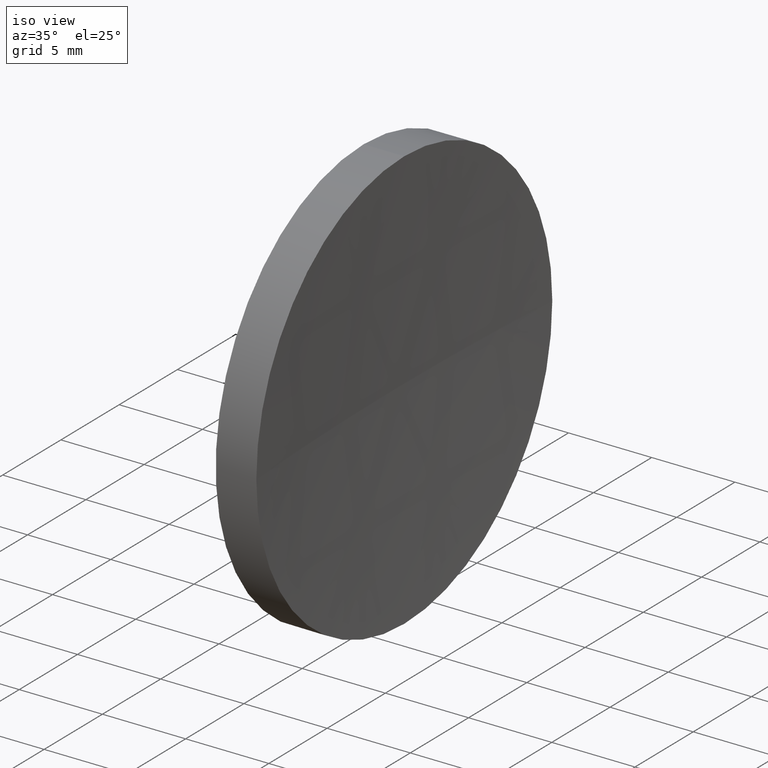
[diagram: clean part render]
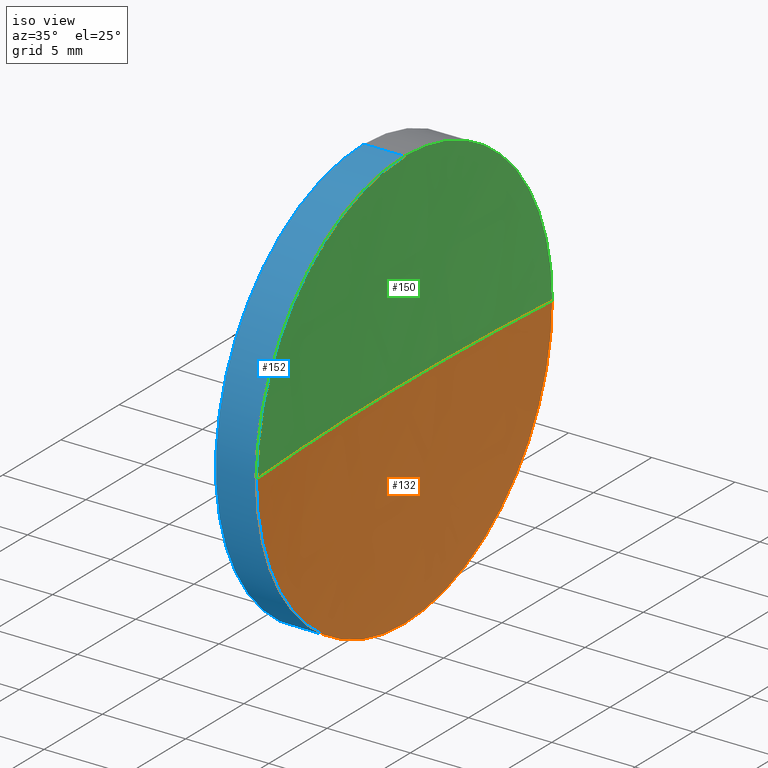
[diagram: same view with three faces highlighted in distinct colors, each labeled with its STEP entity id]
A machine part, iso view with three faces highlighted in distinct colors.
Their STEP definitions:

[orange] entity #132 — the highlighted spherical surface has radius 183.39 mm.
#7 = SPHERICAL_SURFACE ( 'NONE', #47, 183.3899999999999900 ) ;
#10 = CARTESIAN_POINT ( 'NONE',  ( 304.7529307920347000, 71.19398908659368900, 0.0000000000000000000 ) ) ;
#17 = EDGE_CURVE ( 'NONE', #138, #64, #107, .T. ) ;
#19 = ORIENTED_EDGE ( 'NONE', *, *, #32, .F. ) ;
#26 = EDGE_CURVE ( 'NONE', #153, #138, #168, .T. ) ;
#32 = EDGE_CURVE ( 'NONE', #64, #120, #124, .T. ) ;
#34 = CARTESIAN_POINT ( 'NONE',  ( 121.8032051841508400, 71.19398908659370300, 0.0000000000000000000 ) ) ;
#35 = ORIENTED_EDGE ( 'NONE', *, *, #26, .F. ) ;
#36 = CARTESIAN_POINT ( 'NONE',  ( 304.7529307920347000, 71.19398908659368900, 0.0000000000000000000 ) ) ;
#43 = CIRCLE ( 'NONE', #100, 183.3899999999999900 ) ;
#47 = AXIS2_PLACEMENT_3D ( 'NONE', #130, #56, #94 ) ;
#50 = DIRECTION ( 'NONE',  ( 0.0000000000000000000, 0.0000000000000000000, 1.000000000000000000 ) ) ;
#51 = DIRECTION ( 'NONE',  ( -1.000000000000000000, -0.0000000000000000000, -0.0000000000000000000 ) ) ;
#53 = DIRECTION ( 'NONE',  ( 1.000000000000000000, 0.0000000000000000000, 0.0000000000000000000 ) ) ;
#55 = AXIS2_PLACEMENT_3D ( 'NONE', #10, #155, #185 ) ;
#56 = DIRECTION ( 'NONE',  ( 0.0000000000000000000, 0.0000000000000000000, -1.000000000000000000 ) ) ;
#59 = EDGE_LOOP ( 'NONE', ( #19, #186, #35, #84 ) ) ;
#60 = CARTESIAN_POINT ( 'NONE',  ( 121.8032051841508300, 83.89398908659370600, 0.0000000000000000000 ) ) ;
#64 = VERTEX_POINT ( 'NONE', #111 ) ;
#68 = DIRECTION ( 'NONE',  ( -1.000000000000000000, -0.0000000000000000000, -0.0000000000000000000 ) ) ;
#73 = DIRECTION ( 'NONE',  ( 0.0000000000000000000, 0.0000000000000000000, 1.000000000000000000 ) ) ;
#74 = CARTESIAN_POINT ( 'NONE',  ( 121.3629307920346900, 71.19398908659370300, 0.0000000000000000000 ) ) ;
#76 = EDGE_CURVE ( 'NONE', #153, #120, #43, .T. ) ;
#84 = ORIENTED_EDGE ( 'NONE', *, *, #76, .T. ) ;
#94 = DIRECTION ( 'NONE',  ( 0.0000000000000000000, 1.000000000000000000, 0.0000000000000000000 ) ) ;
#98 = FACE_OUTER_BOUND ( 'NONE', #59, .T. ) ;
#100 = AXIS2_PLACEMENT_3D ( 'NONE', #36, #73, #53 ) ;
#107 = CIRCLE ( 'NONE', #144, 12.69999999999996200 ) ;
#111 = CARTESIAN_POINT ( 'NONE',  ( 121.8032051841508300, 58.49398908659368600, -1.555301434917138600E-015 ) ) ;
#120 = VERTEX_POINT ( 'NONE', #74 ) ;
#124 = CIRCLE ( 'NONE', #55, 183.3899999999999900 ) ;
#127 = DIRECTION ( 'NONE',  ( 0.0000000000000000000, 0.0000000000000000000, 1.000000000000000000 ) ) ;
#130 = CARTESIAN_POINT ( 'NONE',  ( 304.7529307920347000, 71.19398908659368900, 0.0000000000000000000 ) ) ;
#132 = ADVANCED_FACE ( 'NONE', ( #98 ), #7, .F. ) ;
#138 = VERTEX_POINT ( 'NONE', #143 ) ;
#143 = CARTESIAN_POINT ( 'NONE',  ( 121.8032051841508400, 71.19398908659370300, -12.69999999999996200 ) ) ;
#144 = AXIS2_PLACEMENT_3D ( 'NONE', #34, #68, #127 ) ;
#153 = VERTEX_POINT ( 'NONE', #60 ) ;
#155 = DIRECTION ( 'NONE',  ( 0.0000000000000000000, 1.224646799147353200E-016, -1.000000000000000000 ) ) ;
#162 = AXIS2_PLACEMENT_3D ( 'NONE', #174, #51, #50 ) ;
#168 = CIRCLE ( 'NONE', #162, 12.69999999999996200 ) ;
#174 = CARTESIAN_POINT ( 'NONE',  ( 121.8032051841508400, 71.19398908659370300, 0.0000000000000000000 ) ) ;
#185 = DIRECTION ( 'NONE',  ( 0.0000000000000000000, 1.000000000000000000, 1.224646799147353200E-016 ) ) ;
#186 = ORIENTED_EDGE ( 'NONE', *, *, #17, .F. ) ;

[blue] entity #152 — the highlighted cylindrical surface (partial cylindrical patch) has radius 12.7 mm, axis along (-1, -0, -0).
#2 = CARTESIAN_POINT ( 'NONE',  ( 111.9552297575605700, 71.19398908659370300, 12.69999999999998200 ) ) ;
#8 = EDGE_CURVE ( 'NONE', #81, #180, #142, .T. ) ;
#11 = CARTESIAN_POINT ( 'NONE',  ( 111.9552297575605700, 71.19398908659370300, 0.0000000000000000000 ) ) ;
#15 = DIRECTION ( 'NONE',  ( -1.000000000000000000, -0.0000000000000000000, -0.0000000000000000000 ) ) ;
#17 = EDGE_CURVE ( 'NONE', #138, #64, #107, .T. ) ;
#21 = VERTEX_POINT ( 'NONE', #85 ) ;
#22 = CARTESIAN_POINT ( 'NONE',  ( 119.3629307920347200, 71.19398908659370300, -12.70000000000000100 ) ) ;
#29 = CARTESIAN_POINT ( 'NONE',  ( 121.8032051841508400, 71.19398908659370300, 0.0000000000000000000 ) ) ;
#34 = CARTESIAN_POINT ( 'NONE',  ( 121.8032051841508400, 71.19398908659370300, 0.0000000000000000000 ) ) ;
#40 = CARTESIAN_POINT ( 'NONE',  ( 119.3629307920347200, 71.19398908659370300, 12.70000000000000300 ) ) ;
#41 = DIRECTION ( 'NONE',  ( 0.0000000000000000000, 0.0000000000000000000, 1.000000000000000000 ) ) ;
#57 = ORIENTED_EDGE ( 'NONE', *, *, #116, .T. ) ;
#58 = CARTESIAN_POINT ( 'NONE',  ( 111.9552297575605700, 71.19398908659370300, -12.69999999999998200 ) ) ;
#63 = ORIENTED_EDGE ( 'NONE', *, *, #17, .T. ) ;
#64 = VERTEX_POINT ( 'NONE', #111 ) ;
#68 = DIRECTION ( 'NONE',  ( -1.000000000000000000, -0.0000000000000000000, -0.0000000000000000000 ) ) ;
#78 = FACE_OUTER_BOUND ( 'NONE', #134, .T. ) ;
#81 = VERTEX_POINT ( 'NONE', #22 ) ;
#82 = AXIS2_PLACEMENT_3D ( 'NONE', #29, #131, #104 ) ;
#85 = CARTESIAN_POINT ( 'NONE',  ( 121.8032051841508400, 71.19398908659370300, 12.69999999999996200 ) ) ;
#86 = CIRCLE ( 'NONE', #82, 12.69999999999996200 ) ;
#91 = VECTOR ( 'NONE', #141, 1000.000000000000000 ) ;
#96 = AXIS2_PLACEMENT_3D ( 'NONE', #11, #15, #41 ) ;
#99 = ORIENTED_EDGE ( 'NONE', *, *, #8, .F. ) ;
#104 = DIRECTION ( 'NONE',  ( 0.0000000000000000000, 0.0000000000000000000, 1.000000000000000000 ) ) ;
#107 = CIRCLE ( 'NONE', #144, 12.69999999999996200 ) ;
#110 = ORIENTED_EDGE ( 'NONE', *, *, #136, .F. ) ;
#111 = CARTESIAN_POINT ( 'NONE',  ( 121.8032051841508300, 58.49398908659368600, -1.555301434917138600E-015 ) ) ;
#116 = EDGE_CURVE ( 'NONE', #64, #21, #86, .T. ) ;
#121 = LINE ( 'NONE', #2, #91 ) ;
#125 = EDGE_CURVE ( 'NONE', #21, #180, #121, .T. ) ;
#127 = DIRECTION ( 'NONE',  ( 0.0000000000000000000, 0.0000000000000000000, 1.000000000000000000 ) ) ;
#131 = DIRECTION ( 'NONE',  ( -1.000000000000000000, -0.0000000000000000000, -0.0000000000000000000 ) ) ;
#134 = EDGE_LOOP ( 'NONE', ( #110, #63, #57, #135, #99 ) ) ;
#135 = ORIENTED_EDGE ( 'NONE', *, *, #125, .T. ) ;
#136 = EDGE_CURVE ( 'NONE', #138, #81, #160, .T. ) ;
#138 = VERTEX_POINT ( 'NONE', #143 ) ;
#139 = CARTESIAN_POINT ( 'NONE',  ( 119.3629307920347200, 71.19398908659370300, 0.0000000000000000000 ) ) ;
#141 = DIRECTION ( 'NONE',  ( -1.000000000000000000, -0.0000000000000000000, -0.0000000000000000000 ) ) ;
#142 = CIRCLE ( 'NONE', #151, 12.70000000000000300 ) ;
#143 = CARTESIAN_POINT ( 'NONE',  ( 121.8032051841508400, 71.19398908659370300, -12.69999999999996200 ) ) ;
#144 = AXIS2_PLACEMENT_3D ( 'NONE', #34, #68, #127 ) ;
#151 = AXIS2_PLACEMENT_3D ( 'NONE', #139, #157, #177 ) ;
#152 = ADVANCED_FACE ( 'NONE', ( #78 ), #184, .T. ) ;
#157 = DIRECTION ( 'NONE',  ( -1.000000000000000000, -0.0000000000000000000, -0.0000000000000000000 ) ) ;
#160 = LINE ( 'NONE', #58, #169 ) ;
#169 = VECTOR ( 'NONE', #181, 1000.000000000000000 ) ;
#177 = DIRECTION ( 'NONE',  ( 0.0000000000000000000, 0.0000000000000000000, 1.000000000000000000 ) ) ;
#180 = VERTEX_POINT ( 'NONE', #40 ) ;
#181 = DIRECTION ( 'NONE',  ( -1.000000000000000000, -0.0000000000000000000, -0.0000000000000000000 ) ) ;
#184 = CYLINDRICAL_SURFACE ( 'NONE', #96, 12.69999999999998200 ) ;

[green] entity #150 — the highlighted spherical surface has radius 183.39 mm.
#10 = CARTESIAN_POINT ( 'NONE',  ( 304.7529307920347000, 71.19398908659368900, 0.0000000000000000000 ) ) ;
#21 = VERTEX_POINT ( 'NONE', #85 ) ;
#29 = CARTESIAN_POINT ( 'NONE',  ( 121.8032051841508400, 71.19398908659370300, 0.0000000000000000000 ) ) ;
#32 = EDGE_CURVE ( 'NONE', #64, #120, #124, .T. ) ;
#33 = FACE_OUTER_BOUND ( 'NONE', #173, .T. ) ;
#36 = CARTESIAN_POINT ( 'NONE',  ( 304.7529307920347000, 71.19398908659368900, 0.0000000000000000000 ) ) ;
#39 = SPHERICAL_SURFACE ( 'NONE', #77, 183.3899999999999900 ) ;
#43 = CIRCLE ( 'NONE', #100, 183.3899999999999900 ) ;
#52 = CARTESIAN_POINT ( 'NONE',  ( 121.8032051841508400, 71.19398908659370300, 0.0000000000000000000 ) ) ;
#53 = DIRECTION ( 'NONE',  ( 1.000000000000000000, 0.0000000000000000000, 0.0000000000000000000 ) ) ;
#55 = AXIS2_PLACEMENT_3D ( 'NONE', #10, #155, #185 ) ;
#60 = CARTESIAN_POINT ( 'NONE',  ( 121.8032051841508300, 83.89398908659370600, 0.0000000000000000000 ) ) ;
#64 = VERTEX_POINT ( 'NONE', #111 ) ;
#65 = EDGE_CURVE ( 'NONE', #21, #153, #126, .T. ) ;
#73 = DIRECTION ( 'NONE',  ( 0.0000000000000000000, 0.0000000000000000000, 1.000000000000000000 ) ) ;
#74 = CARTESIAN_POINT ( 'NONE',  ( 121.3629307920346900, 71.19398908659370300, 0.0000000000000000000 ) ) ;
#75 = ORIENTED_EDGE ( 'NONE', *, *, #76, .F. ) ;
#76 = EDGE_CURVE ( 'NONE', #153, #120, #43, .T. ) ;
#77 = AXIS2_PLACEMENT_3D ( 'NONE', #147, #119, #92 ) ;
#82 = AXIS2_PLACEMENT_3D ( 'NONE', #29, #131, #104 ) ;
#85 = CARTESIAN_POINT ( 'NONE',  ( 121.8032051841508400, 71.19398908659370300, 12.69999999999996200 ) ) ;
#86 = CIRCLE ( 'NONE', #82, 12.69999999999996200 ) ;
#92 = DIRECTION ( 'NONE',  ( 0.0000000000000000000, 1.000000000000000000, 0.0000000000000000000 ) ) ;
#100 = AXIS2_PLACEMENT_3D ( 'NONE', #36, #73, #53 ) ;
#101 = ORIENTED_EDGE ( 'NONE', *, *, #116, .F. ) ;
#104 = DIRECTION ( 'NONE',  ( 0.0000000000000000000, 0.0000000000000000000, 1.000000000000000000 ) ) ;
#111 = CARTESIAN_POINT ( 'NONE',  ( 121.8032051841508300, 58.49398908659368600, -1.555301434917138600E-015 ) ) ;
#112 = ORIENTED_EDGE ( 'NONE', *, *, #65, .F. ) ;
#116 = EDGE_CURVE ( 'NONE', #64, #21, #86, .T. ) ;
#119 = DIRECTION ( 'NONE',  ( 0.0000000000000000000, 0.0000000000000000000, -1.000000000000000000 ) ) ;
#120 = VERTEX_POINT ( 'NONE', #74 ) ;
#124 = CIRCLE ( 'NONE', #55, 183.3899999999999900 ) ;
#126 = CIRCLE ( 'NONE', #170, 12.69999999999996200 ) ;
#131 = DIRECTION ( 'NONE',  ( -1.000000000000000000, -0.0000000000000000000, -0.0000000000000000000 ) ) ;
#147 = CARTESIAN_POINT ( 'NONE',  ( 304.7529307920347000, 71.19398908659368900, 0.0000000000000000000 ) ) ;
#149 = ORIENTED_EDGE ( 'NONE', *, *, #32, .T. ) ;
#150 = ADVANCED_FACE ( 'NONE', ( #33 ), #39, .F. ) ;
#153 = VERTEX_POINT ( 'NONE', #60 ) ;
#155 = DIRECTION ( 'NONE',  ( 0.0000000000000000000, 1.224646799147353200E-016, -1.000000000000000000 ) ) ;
#158 = DIRECTION ( 'NONE',  ( -1.000000000000000000, -0.0000000000000000000, -0.0000000000000000000 ) ) ;
#170 = AXIS2_PLACEMENT_3D ( 'NONE', #52, #158, #172 ) ;
#172 = DIRECTION ( 'NONE',  ( 0.0000000000000000000, 0.0000000000000000000, 1.000000000000000000 ) ) ;
#173 = EDGE_LOOP ( 'NONE', ( #101, #149, #75, #112 ) ) ;
#185 = DIRECTION ( 'NONE',  ( 0.0000000000000000000, 1.000000000000000000, 1.224646799147353200E-016 ) ) ;